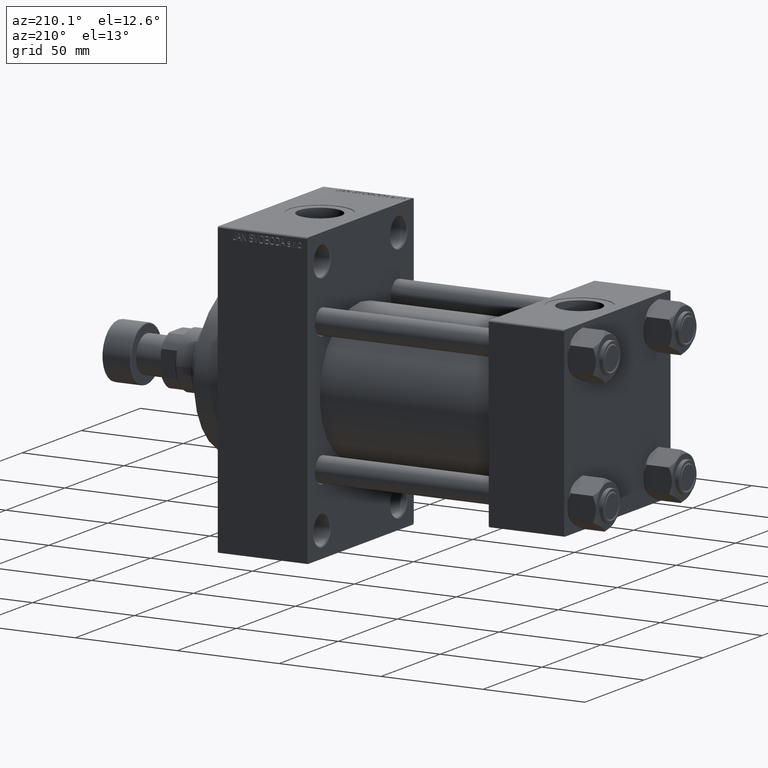
[diagram: clean part render]
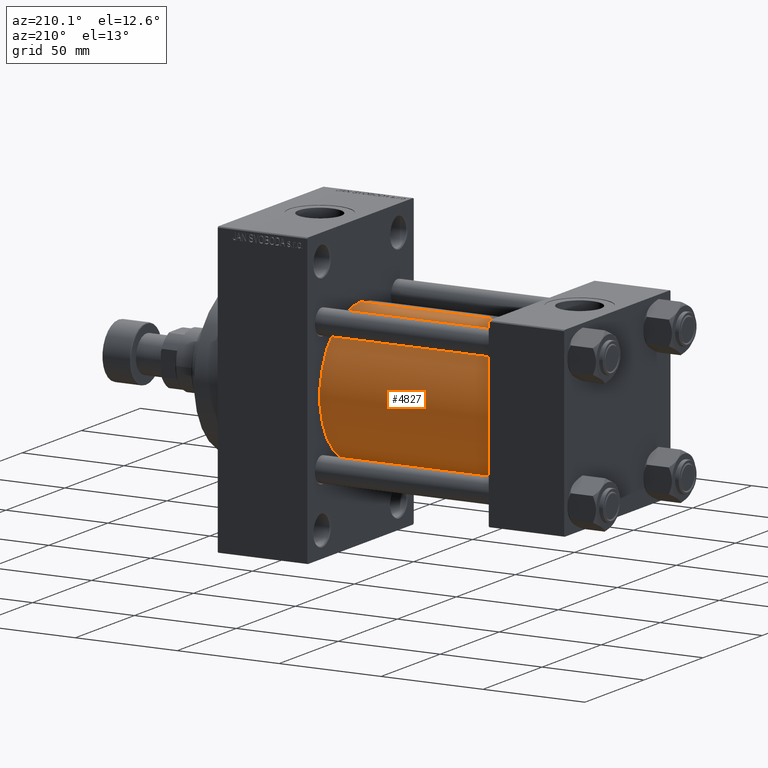
[diagram: same view with one face highlighted and labeled with its STEP entity id]
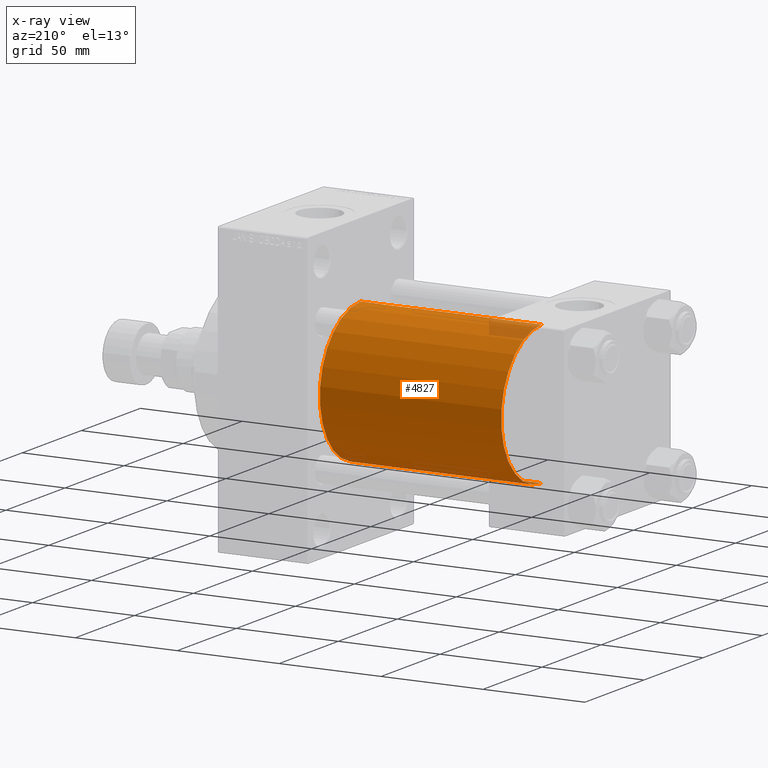
[diagram: x-ray of the same camera — body ghosted, the highlighted face saturated]
A machine part, auxiliary view. The second image highlights one B-rep face of the part: STEP entity #4827.
The next image is the same camera in x-ray: the body ghosted, the highlighted face saturated — about 3% of this face is hidden behind the body in this view.
In plain terms, the highlighted cylindrical surface (partial cylindrical patch) has radius 34.5 mm, axis along (-1, -0, -0).
Its self-contained STEP definition (entity closure, byte-faithful):
#3947 = VERTEX_POINT ( 'NONE', #8681 ) ;
#4827 = ADVANCED_FACE ( 'NONE', ( #6713 ), #36392, .T. ) ;
#5579 = VECTOR ( 'NONE', #25498, 1000.000000000000000 ) ;
#6713 = FACE_OUTER_BOUND ( 'NONE', #38103, .T. ) ;
#7835 = AXIS2_PLACEMENT_3D ( 'NONE', #31592, #42919, #13044 ) ;
#8057 = AXIS2_PLACEMENT_3D ( 'NONE', #23187, #11366, #19574 ) ;
#8681 = CARTESIAN_POINT ( 'NONE',  ( 37.00000000000000711, 1.622946243093158675E-15, -34.50000000000000000 ) ) ;
#11366 = DIRECTION ( 'NONE',  ( 1.000000000000000000, 0.000000000000000000, 0.000000000000000000 ) ) ;
#12370 = ORIENTED_EDGE ( 'NONE', *, *, #36763, .T. ) ;
#13000 = AXIS2_PLACEMENT_3D ( 'NONE', #13262, #43609, #20967 ) ;
#13044 = DIRECTION ( 'NONE',  ( 0.000000000000000000, 0.000000000000000000, 1.000000000000000000 ) ) ;
#13262 = CARTESIAN_POINT ( 'NONE',  ( 126.0000000000000000, -2.602085213965210642E-15, 0.000000000000000000 ) ) ;
#13639 = CARTESIAN_POINT ( 'NONE',  ( 126.0000000000000000, 1.622946243093158675E-15, -34.50000000000000000 ) ) ;
#13973 = EDGE_CURVE ( 'NONE', #3947, #32760, #26335, .T. ) ;
#18073 = CIRCLE ( 'NONE', #8057, 34.50000000000000000 ) ;
#18750 = DIRECTION ( 'NONE',  ( -1.000000000000000000, -0.000000000000000000, -0.000000000000000000 ) ) ;
#19574 = DIRECTION ( 'NONE',  ( 0.000000000000000000, 0.000000000000000000, -1.000000000000000000 ) ) ;
#20548 = EDGE_CURVE ( 'NONE', #30741, #25484, #18073, .T. ) ;
#20967 = DIRECTION ( 'NONE',  ( 0.000000000000000000, 0.000000000000000000, 1.000000000000000000 ) ) ;
#23187 = CARTESIAN_POINT ( 'NONE',  ( 126.0000000000000000, -2.602085213965210642E-15, 0.000000000000000000 ) ) ;
#25484 = VERTEX_POINT ( 'NONE', #37552 ) ;
#25498 = DIRECTION ( 'NONE',  ( -1.000000000000000000, -0.000000000000000000, -0.000000000000000000 ) ) ;
#26335 = CIRCLE ( 'NONE', #7835, 34.50000000000000000 ) ;
#30741 = VERTEX_POINT ( 'NONE', #13639 ) ;
#31592 = CARTESIAN_POINT ( 'NONE',  ( 37.00000000000000711, -2.602085213965210642E-15, 0.000000000000000000 ) ) ;
#32760 = VERTEX_POINT ( 'NONE', #45840 ) ;
#36392 = CYLINDRICAL_SURFACE ( 'NONE', #13000, 34.50000000000000000 ) ;
#36590 = LINE ( 'NONE', #40909, #5579 ) ;
#36763 = EDGE_CURVE ( 'NONE', #30741, #3947, #43802, .T. ) ;
#37552 = CARTESIAN_POINT ( 'NONE',  ( 126.0000000000000000, -2.602085213965210642E-15, 34.50000000000000000 ) ) ;
#38103 = EDGE_LOOP ( 'NONE', ( #47560, #12370, #41136, #41415 ) ) ;
#39286 = VECTOR ( 'NONE', #18750, 1000.000000000000000 ) ;
#40909 = CARTESIAN_POINT ( 'NONE',  ( 126.0000000000000000, -2.602085213965210642E-15, 34.50000000000000000 ) ) ;
#41136 = ORIENTED_EDGE ( 'NONE', *, *, #13973, .T. ) ;
#41415 = ORIENTED_EDGE ( 'NONE', *, *, #45208, .F. ) ;
#42919 = DIRECTION ( 'NONE',  ( 1.000000000000000000, -0.000000000000000000, 0.000000000000000000 ) ) ;
#43609 = DIRECTION ( 'NONE',  ( -1.000000000000000000, -0.000000000000000000, -0.000000000000000000 ) ) ;
#43802 = LINE ( 'NONE', #44050, #39286 ) ;
#44050 = CARTESIAN_POINT ( 'NONE',  ( 126.0000000000000000, 1.622946243093158675E-15, -34.50000000000000000 ) ) ;
#45208 = EDGE_CURVE ( 'NONE', #25484, #32760, #36590, .T. ) ;
#45840 = CARTESIAN_POINT ( 'NONE',  ( 37.00000000000000711, -2.602085213965210642E-15, 34.50000000000000000 ) ) ;
#47560 = ORIENTED_EDGE ( 'NONE', *, *, #20548, .F. ) ;